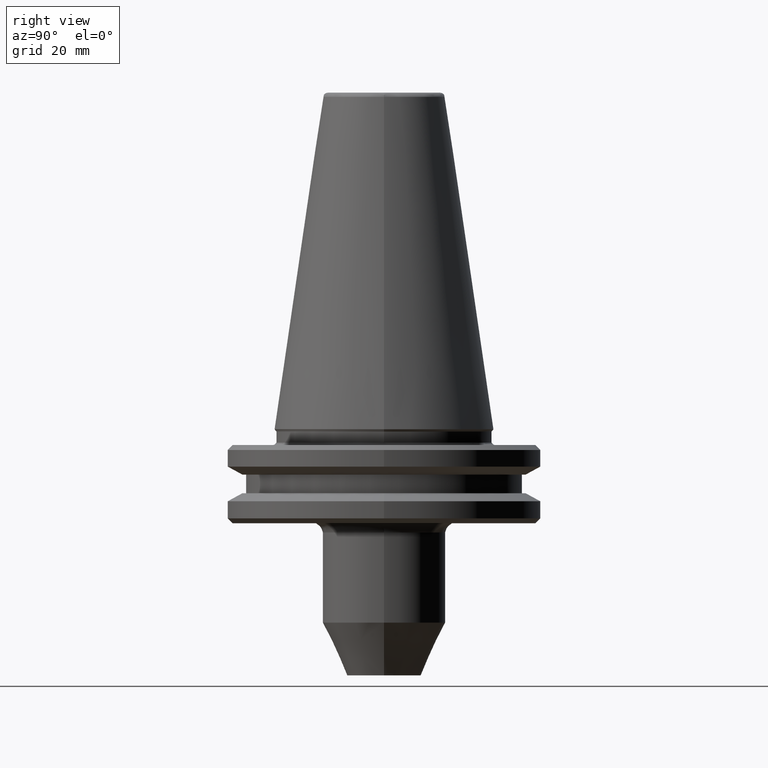
[diagram: clean part render]
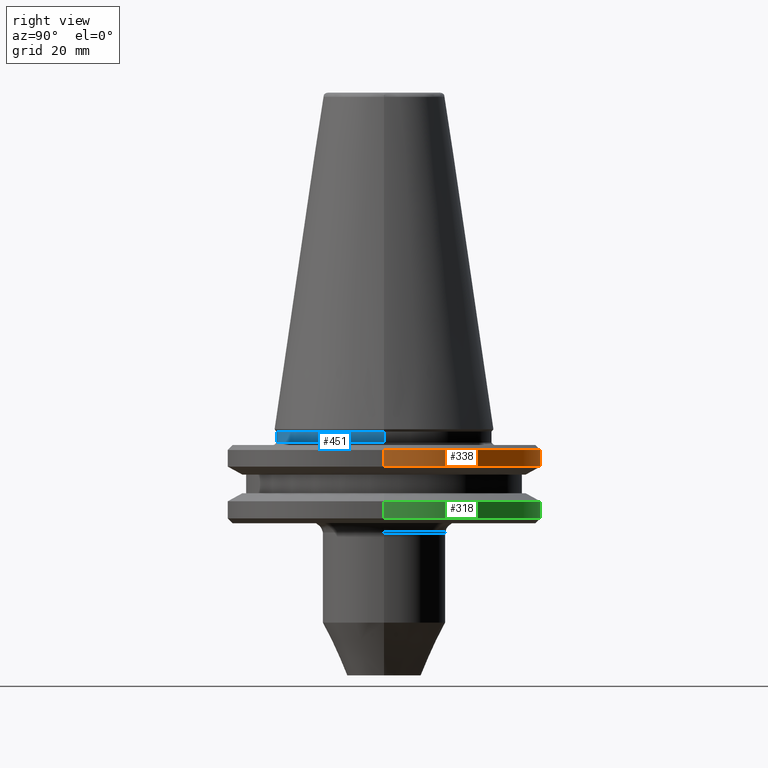
[diagram: same view with three faces highlighted in distinct colors, each labeled with its STEP entity id]
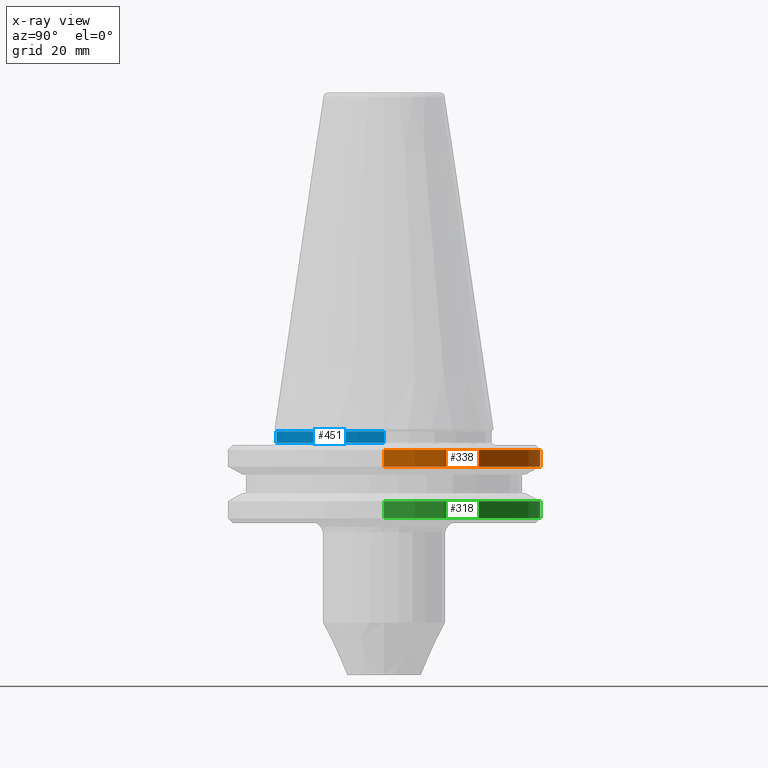
[diagram: x-ray of the same camera — body ghosted, the three highlighted faces saturated]
A machine part, right view with three faces highlighted in distinct colors.
The next image is the same camera in x-ray (body ghosted, the three faces saturated) — at least one of them is partly hidden behind the body in this view.
Their STEP definitions:

[orange] entity #338 — the highlighted cylindrical surface (partial cylindrical patch) has radius 31.75 mm, axis along (0, 0, 1).
#1 = CARTESIAN_POINT ( 'NONE',  ( 0.0000000000000000000, 0.0000000000000000000, -7.578163358198705300 ) ) ;
#2 = VERTEX_POINT ( 'NONE', #1128 ) ;
#28 = CIRCLE ( 'NONE', #1059, 31.75000000000005700 ) ;
#93 = LINE ( 'NONE', #900, #182 ) ;
#96 = ORIENTED_EDGE ( 'NONE', *, *, #407, .T. ) ;
#106 = CARTESIAN_POINT ( 'NONE',  ( 0.0000000000000000000, 0.0000000000000000000, -7.578163358000000300 ) ) ;
#135 = CYLINDRICAL_SURFACE ( 'NONE', #1223, 31.75000000000000000 ) ;
#181 = CIRCLE ( 'NONE', #211, 31.75000000000005700 ) ;
#182 = VECTOR ( 'NONE', #1174, 1000.000000000000000 ) ;
#192 = EDGE_CURVE ( 'NONE', #933, #776, #93, .T. ) ;
#211 = AXIS2_PLACEMENT_3D ( 'NONE', #1252, #1249, #1245 ) ;
#286 = VECTOR ( 'NONE', #1289, 1000.000000000000000 ) ;
#294 = EDGE_CURVE ( 'NONE', #2, #933, #1050, .T. ) ;
#338 = ADVANCED_FACE ( 'NONE', ( #357 ), #135, .T. ) ;
#357 = FACE_OUTER_BOUND ( 'NONE', #561, .T. ) ;
#388 = ORIENTED_EDGE ( 'NONE', *, *, #294, .F. ) ;
#407 = EDGE_CURVE ( 'NONE', #2, #655, #876, .T. ) ;
#419 = ORIENTED_EDGE ( 'NONE', *, *, #443, .F. ) ;
#432 = ORIENTED_EDGE ( 'NONE', *, *, #192, .F. ) ;
#439 = DIRECTION ( 'NONE',  ( 0.0000000000000000000, 0.0000000000000000000, 1.000000000000000000 ) ) ;
#443 = EDGE_CURVE ( 'NONE', #776, #664, #181, .T. ) ;
#560 = ORIENTED_EDGE ( 'NONE', *, *, #763, .F. ) ;
#561 = EDGE_LOOP ( 'NONE', ( #388, #96, #560, #419, #432 ) ) ;
#575 = AXIS2_PLACEMENT_3D ( 'NONE', #1, #856, #1233 ) ;
#576 = CARTESIAN_POINT ( 'NONE',  ( 31.74999999965583100, 0.0000000000000000000, -7.578163358198705300 ) ) ;
#655 = VERTEX_POINT ( 'NONE', #773 ) ;
#664 = VERTEX_POINT ( 'NONE', #769 ) ;
#666 = DIRECTION ( 'NONE',  ( 1.000000000000000000, 0.0000000000000000000, 0.0000000000000000000 ) ) ;
#667 = DIRECTION ( 'NONE',  ( -0.0000000000000000000, -0.0000000000000000000, 1.000000000000000000 ) ) ;
#670 = CARTESIAN_POINT ( 'NONE',  ( 0.0000000000000000000, 0.0000000000000000000, -4.200000000000148500 ) ) ;
#688 = DIRECTION ( 'NONE',  ( 1.000000000000000000, 0.0000000000000000000, 0.0000000000000000000 ) ) ;
#694 = CARTESIAN_POINT ( 'NONE',  ( 31.75000000000005700, 0.0000000000000000000, -4.200000000000148500 ) ) ;
#763 = EDGE_CURVE ( 'NONE', #664, #655, #28, .T. ) ;
#769 = CARTESIAN_POINT ( 'NONE',  ( 0.0000000000000000000, 31.75000000000014600, -4.200000000000148500 ) ) ;
#773 = CARTESIAN_POINT ( 'NONE',  ( -31.75000000000005700, 3.888253587292853600E-015, -4.200000000000148500 ) ) ;
#776 = VERTEX_POINT ( 'NONE', #694 ) ;
#856 = DIRECTION ( 'NONE',  ( -0.0000000000000000000, -0.0000000000000000000, -1.000000000000000000 ) ) ;
#876 = LINE ( 'NONE', #1303, #286 ) ;
#900 = CARTESIAN_POINT ( 'NONE',  ( 31.75000000000000000, 0.0000000000000000000, -7.578163358000000300 ) ) ;
#933 = VERTEX_POINT ( 'NONE', #576 ) ;
#1050 = CIRCLE ( 'NONE', #575, 31.74999999965583100 ) ;
#1059 = AXIS2_PLACEMENT_3D ( 'NONE', #670, #667, #666 ) ;
#1128 = CARTESIAN_POINT ( 'NONE',  ( -31.74999999965583100, 3.888253587250698400E-015, -7.578163358198705300 ) ) ;
#1174 = DIRECTION ( 'NONE',  ( 0.0000000000000000000, 0.0000000000000000000, 1.000000000000000000 ) ) ;
#1223 = AXIS2_PLACEMENT_3D ( 'NONE', #106, #439, #688 ) ;
#1233 = DIRECTION ( 'NONE',  ( 1.000000000000000000, 0.0000000000000000000, 2.731847993693876300E-017 ) ) ;
#1245 = DIRECTION ( 'NONE',  ( 1.000000000000000000, 0.0000000000000000000, 0.0000000000000000000 ) ) ;
#1249 = DIRECTION ( 'NONE',  ( -0.0000000000000000000, -0.0000000000000000000, 1.000000000000000000 ) ) ;
#1252 = CARTESIAN_POINT ( 'NONE',  ( 0.0000000000000000000, 0.0000000000000000000, -4.200000000000148500 ) ) ;
#1289 = DIRECTION ( 'NONE',  ( 0.0000000000000000000, 0.0000000000000000000, 1.000000000000000000 ) ) ;
#1303 = CARTESIAN_POINT ( 'NONE',  ( -31.75000000000000000, 3.888253587292846500E-015, -7.578163358000000300 ) ) ;

[blue] entity #451 — the highlighted cylindrical surface (partial cylindrical patch) has radius 22 mm, axis along (0, 0, 1).
#121 = EDGE_CURVE ( 'NONE', #870, #1040, #1279, .T. ) ;
#122 = CIRCLE ( 'NONE', #1103, 22.00000000000000000 ) ;
#158 = VERTEX_POINT ( 'NONE', #715 ) ;
#162 = CIRCLE ( 'NONE', #603, 22.00000000000000000 ) ;
#165 = AXIS2_PLACEMENT_3D ( 'NONE', #1239, #1241, #1261 ) ;
#200 = CARTESIAN_POINT ( 'NONE',  ( 22.00000000000000000, 0.0000000000000000000, -2.700000000000000200 ) ) ;
#254 = EDGE_CURVE ( 'NONE', #1290, #158, #858, .T. ) ;
#257 = DIRECTION ( 'NONE',  ( 0.0000000000000000000, 0.0000000000000000000, 1.000000000000000000 ) ) ;
#268 = EDGE_LOOP ( 'NONE', ( #505, #486, #1083, #301 ) ) ;
#296 = VECTOR ( 'NONE', #782, 1000.000000000000000 ) ;
#301 = ORIENTED_EDGE ( 'NONE', *, *, #453, .F. ) ;
#382 = FACE_OUTER_BOUND ( 'NONE', #268, .T. ) ;
#449 = CARTESIAN_POINT ( 'NONE',  ( -21.99999999993344700, -1.128067172944972500E-009, -2.700000000557765100 ) ) ;
#451 = ADVANCED_FACE ( 'NONE', ( #382 ), #630, .T. ) ;
#453 = EDGE_CURVE ( 'NONE', #158, #1040, #162, .T. ) ;
#467 = DIRECTION ( 'NONE',  ( 1.000000000000000000, 0.0000000000000000000, 0.0000000000000000000 ) ) ;
#469 = DIRECTION ( 'NONE',  ( 0.0000000000000000000, 0.0000000000000000000, 1.000000000000000000 ) ) ;
#470 = CARTESIAN_POINT ( 'NONE',  ( 0.0000000000000000000, 0.0000000000000000000, -2.700000000557741600 ) ) ;
#486 = ORIENTED_EDGE ( 'NONE', *, *, #1161, .T. ) ;
#505 = ORIENTED_EDGE ( 'NONE', *, *, #254, .F. ) ;
#518 = CARTESIAN_POINT ( 'NONE',  ( 22.00000000000000000, 0.0000000000000000000, -0.4825140570000018300 ) ) ;
#603 = AXIS2_PLACEMENT_3D ( 'NONE', #913, #912, #908 ) ;
#628 = CARTESIAN_POINT ( 'NONE',  ( 21.99999999986690500, 0.0000000000000000000, -2.700000000557789100 ) ) ;
#630 = CYLINDRICAL_SURFACE ( 'NONE', #165, 22.00000000000000000 ) ;
#708 = CARTESIAN_POINT ( 'NONE',  ( -22.00000000000000000, 2.694222958124176800E-015, -2.700000000000000200 ) ) ;
#715 = CARTESIAN_POINT ( 'NONE',  ( -22.00000000000000000, 2.694222958124176800E-015, -0.4825140569999983300 ) ) ;
#782 = DIRECTION ( 'NONE',  ( 0.0000000000000000000, 0.0000000000000000000, 1.000000000000000000 ) ) ;
#858 = LINE ( 'NONE', #708, #296 ) ;
#870 = VERTEX_POINT ( 'NONE', #628 ) ;
#908 = DIRECTION ( 'NONE',  ( 1.000000000000000000, 0.0000000000000000000, 2.464095846557964700E-017 ) ) ;
#912 = DIRECTION ( 'NONE',  ( 0.0000000000000000000, 0.0000000000000000000, 1.000000000000000000 ) ) ;
#913 = CARTESIAN_POINT ( 'NONE',  ( 0.0000000000000000000, 0.0000000000000000000, -0.4825140569999983300 ) ) ;
#1040 = VERTEX_POINT ( 'NONE', #518 ) ;
#1083 = ORIENTED_EDGE ( 'NONE', *, *, #121, .T. ) ;
#1103 = AXIS2_PLACEMENT_3D ( 'NONE', #470, #469, #467 ) ;
#1161 = EDGE_CURVE ( 'NONE', #1290, #870, #122, .T. ) ;
#1239 = CARTESIAN_POINT ( 'NONE',  ( 0.0000000000000000000, 0.0000000000000000000, -2.700000000000000200 ) ) ;
#1241 = DIRECTION ( 'NONE',  ( 0.0000000000000000000, 0.0000000000000000000, 1.000000000000000000 ) ) ;
#1261 = DIRECTION ( 'NONE',  ( 1.000000000000000000, 0.0000000000000000000, 0.0000000000000000000 ) ) ;
#1279 = LINE ( 'NONE', #200, #1307 ) ;
#1290 = VERTEX_POINT ( 'NONE', #449 ) ;
#1307 = VECTOR ( 'NONE', #257, 1000.000000000000000 ) ;

[green] entity #318 — the highlighted cylindrical surface (partial cylindrical patch) has radius 31.75 mm, axis along (0, 0, 1).
#17 = VERTEX_POINT ( 'NONE', #800 ) ;
#78 = LINE ( 'NONE', #816, #1144 ) ;
#89 = EDGE_CURVE ( 'NONE', #732, #17, #614, .T. ) ;
#129 = EDGE_LOOP ( 'NONE', ( #1154, #256, #892, #1331 ) ) ;
#204 = FACE_OUTER_BOUND ( 'NONE', #129, .T. ) ;
#256 = ORIENTED_EDGE ( 'NONE', *, *, #738, .T. ) ;
#318 = ADVANCED_FACE ( 'NONE', ( #204 ), #1086, .T. ) ;
#427 = VECTOR ( 'NONE', #723, 1000.000000000000000 ) ;
#559 = CARTESIAN_POINT ( 'NONE',  ( 31.75000000000005700, 0.0000000000000000000, -18.10000000000078300 ) ) ;
#572 = CIRCLE ( 'NONE', #978, 31.75000000000005700 ) ;
#597 = EDGE_CURVE ( 'NONE', #960, #682, #572, .T. ) ;
#614 = CIRCLE ( 'NONE', #1345, 31.75000000000000000 ) ;
#616 = EDGE_CURVE ( 'NONE', #960, #17, #78, .T. ) ;
#637 = CARTESIAN_POINT ( 'NONE',  ( 0.0000000000000000000, 0.0000000000000000000, -17.93431457499999800 ) ) ;
#682 = VERTEX_POINT ( 'NONE', #759 ) ;
#696 = CARTESIAN_POINT ( 'NONE',  ( -31.75000000000000000, 3.888253587292846500E-015, -17.93431457499999800 ) ) ;
#711 = CARTESIAN_POINT ( 'NONE',  ( -31.75000000000000000, 3.888253587292846500E-015, -14.62183664194333400 ) ) ;
#723 = DIRECTION ( 'NONE',  ( 0.0000000000000000000, 0.0000000000000000000, 1.000000000000000000 ) ) ;
#724 = LINE ( 'NONE', #696, #427 ) ;
#732 = VERTEX_POINT ( 'NONE', #711 ) ;
#738 = EDGE_CURVE ( 'NONE', #682, #732, #724, .T. ) ;
#759 = CARTESIAN_POINT ( 'NONE',  ( -31.75000000000005700, 3.888253587292853600E-015, -18.10000000000078300 ) ) ;
#800 = CARTESIAN_POINT ( 'NONE',  ( 31.75000000000000000, 0.0000000000000000000, -14.62183664194333400 ) ) ;
#801 = DIRECTION ( 'NONE',  ( 0.0000000000000000000, 0.0000000000000000000, 1.000000000000000000 ) ) ;
#809 = DIRECTION ( 'NONE',  ( 1.000000000000000000, 0.0000000000000000000, 0.0000000000000000000 ) ) ;
#811 = DIRECTION ( 'NONE',  ( -0.0000000000000000000, -0.0000000000000000000, 1.000000000000000000 ) ) ;
#814 = CARTESIAN_POINT ( 'NONE',  ( 0.0000000000000000000, 0.0000000000000000000, -18.10000000000078300 ) ) ;
#816 = CARTESIAN_POINT ( 'NONE',  ( 31.75000000000000000, 0.0000000000000000000, -17.93431457499999800 ) ) ;
#861 = DIRECTION ( 'NONE',  ( -0.0000000000000000000, -0.0000000000000000000, -1.000000000000000000 ) ) ;
#892 = ORIENTED_EDGE ( 'NONE', *, *, #89, .T. ) ;
#939 = DIRECTION ( 'NONE',  ( 0.0000000000000000000, 0.0000000000000000000, 1.000000000000000000 ) ) ;
#960 = VERTEX_POINT ( 'NONE', #559 ) ;
#973 = DIRECTION ( 'NONE',  ( 1.000000000000000000, 0.0000000000000000000, 0.0000000000000000000 ) ) ;
#978 = AXIS2_PLACEMENT_3D ( 'NONE', #814, #811, #809 ) ;
#1086 = CYLINDRICAL_SURFACE ( 'NONE', #1281, 31.75000000000000000 ) ;
#1144 = VECTOR ( 'NONE', #801, 1000.000000000000000 ) ;
#1154 = ORIENTED_EDGE ( 'NONE', *, *, #597, .T. ) ;
#1156 = CARTESIAN_POINT ( 'NONE',  ( 0.0000000000000000000, 0.0000000000000000000, -14.62183664194333400 ) ) ;
#1281 = AXIS2_PLACEMENT_3D ( 'NONE', #637, #939, #973 ) ;
#1295 = DIRECTION ( 'NONE',  ( 1.000000000000000000, 0.0000000000000000000, 0.0000000000000000000 ) ) ;
#1331 = ORIENTED_EDGE ( 'NONE', *, *, #616, .F. ) ;
#1345 = AXIS2_PLACEMENT_3D ( 'NONE', #1156, #861, #1295 ) ;